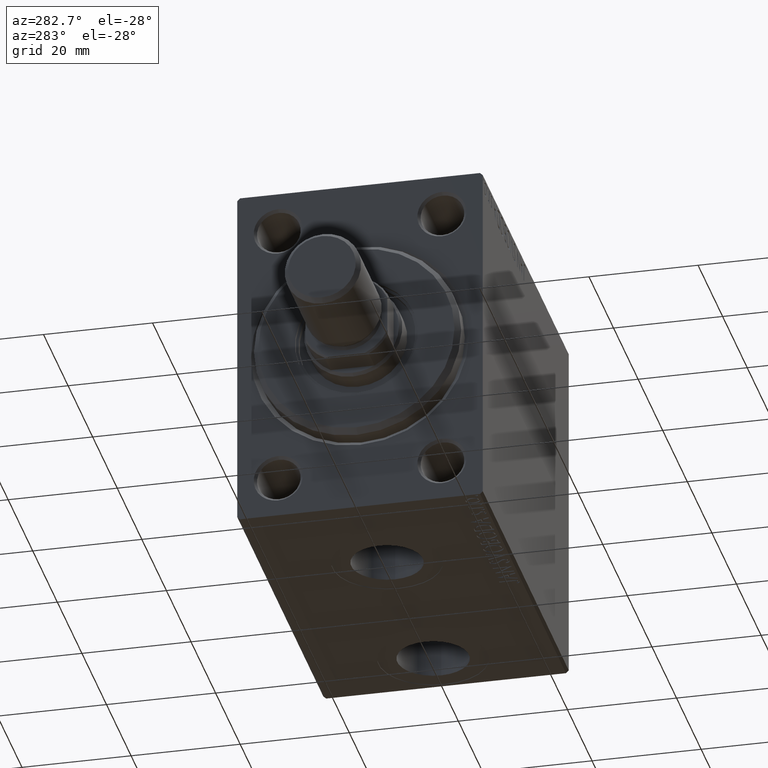
[diagram: clean part render]
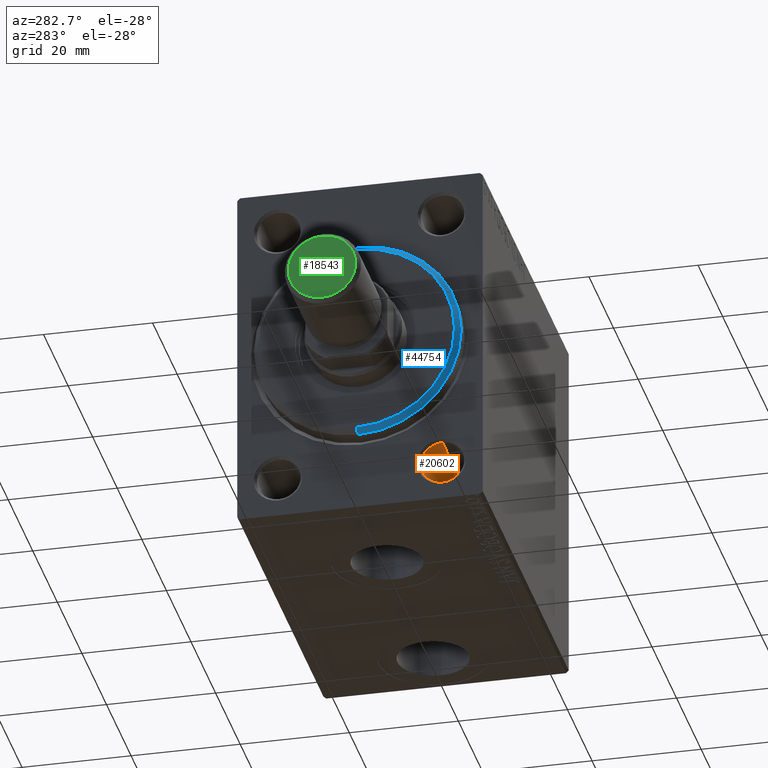
[diagram: same view with three faces highlighted in distinct colors, each labeled with its STEP entity id]
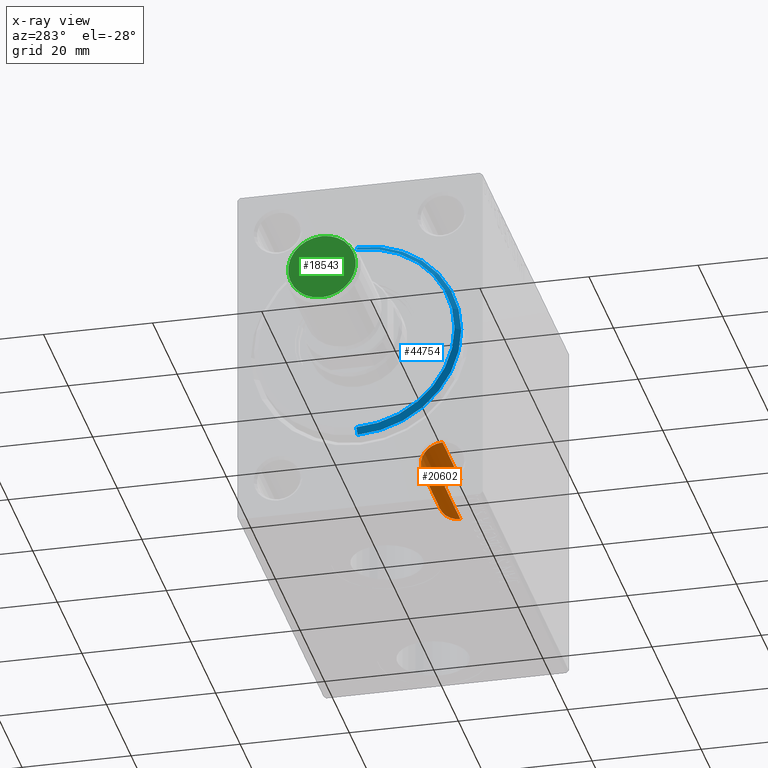
[diagram: x-ray of the same camera — body ghosted, the three highlighted faces saturated]
A machine part, auxiliary view with three faces highlighted in distinct colors.
The next image is the same camera in x-ray (body ghosted, the three faces saturated) — at least one of them is partly hidden behind the body in this view.
Their STEP definitions:

[orange] entity #20602 — the highlighted cylindrical surface (edge-blend (fillet) strip) has radius 4 mm, axis along (-1, -0, -0).
#1211 = CARTESIAN_POINT ( 'NONE',  ( 0.4999999999999917843, -15.00000000000000000, -21.00000000000000355 ) ) ;
#1624 = CYLINDRICAL_SURFACE ( 'NONE', #38999, 3.999999999999996447 ) ;
#2132 = CARTESIAN_POINT ( 'NONE',  ( 0.4999999999999917843, -15.00000000000000000, -28.99999999999999645 ) ) ;
#3599 = CIRCLE ( 'NONE', #28864, 3.999999999999996447 ) ;
#3856 = DIRECTION ( 'NONE',  ( 0.000000000000000000, 0.000000000000000000, 1.000000000000000000 ) ) ;
#4638 = DIRECTION ( 'NONE',  ( 0.000000000000000000, 0.000000000000000000, -1.000000000000000000 ) ) ;
#4907 = VERTEX_POINT ( 'NONE', #13430 ) ;
#5365 = DIRECTION ( 'NONE',  ( -1.000000000000000000, -0.000000000000000000, -0.000000000000000000 ) ) ;
#9045 = VERTEX_POINT ( 'NONE', #2132 ) ;
#10876 = VERTEX_POINT ( 'NONE', #1211 ) ;
#11294 = EDGE_CURVE ( 'NONE', #4907, #9045, #27442, .T. ) ;
#11878 = CARTESIAN_POINT ( 'NONE',  ( 0.4999999999999917843, -15.00000000000000000, -25.00000000000000000 ) ) ;
#12366 = DIRECTION ( 'NONE',  ( 0.000000000000000000, 0.000000000000000000, 1.000000000000000000 ) ) ;
#12523 = LINE ( 'NONE', #27149, #42098 ) ;
#13128 = VECTOR ( 'NONE', #42099, 1000.000000000000000 ) ;
#13430 = CARTESIAN_POINT ( 'NONE',  ( 15.00000000000000000, -15.00000000000000000, -28.99999999999999645 ) ) ;
#14145 = ORIENTED_EDGE ( 'NONE', *, *, #37233, .F. ) ;
#15587 = DIRECTION ( 'NONE',  ( -1.000000000000000000, 0.000000000000000000, 0.000000000000000000 ) ) ;
#17834 = CARTESIAN_POINT ( 'NONE',  ( 15.00000000000000000, -15.00000000000000000, -25.00000000000000000 ) ) ;
#19780 = CARTESIAN_POINT ( 'NONE',  ( 0.000000000000000000, -15.00000000000000000, -28.99999999999999645 ) ) ;
#20602 = ADVANCED_FACE ( 'NONE', ( #22821 ), #1624, .F. ) ;
#21533 = CIRCLE ( 'NONE', #25969, 3.999999999999996447 ) ;
#22539 = ORIENTED_EDGE ( 'NONE', *, *, #11294, .F. ) ;
#22821 = FACE_OUTER_BOUND ( 'NONE', #40990, .T. ) ;
#25969 = AXIS2_PLACEMENT_3D ( 'NONE', #17834, #39672, #3856 ) ;
#26916 = ORIENTED_EDGE ( 'NONE', *, *, #28666, .T. ) ;
#27149 = CARTESIAN_POINT ( 'NONE',  ( 0.000000000000000000, -15.00000000000000000, -21.00000000000000355 ) ) ;
#27442 = LINE ( 'NONE', #19780, #13128 ) ;
#28371 = VERTEX_POINT ( 'NONE', #30985 ) ;
#28666 = EDGE_CURVE ( 'NONE', #28371, #10876, #12523, .T. ) ;
#28864 = AXIS2_PLACEMENT_3D ( 'NONE', #11878, #15587, #4638 ) ;
#30012 = CARTESIAN_POINT ( 'NONE',  ( 0.000000000000000000, -15.00000000000000000, -25.00000000000000000 ) ) ;
#30985 = CARTESIAN_POINT ( 'NONE',  ( 15.00000000000000000, -15.00000000000000000, -21.00000000000000355 ) ) ;
#33472 = EDGE_CURVE ( 'NONE', #10876, #9045, #3599, .T. ) ;
#36279 = ORIENTED_EDGE ( 'NONE', *, *, #33472, .T. ) ;
#37233 = EDGE_CURVE ( 'NONE', #28371, #4907, #21533, .T. ) ;
#38999 = AXIS2_PLACEMENT_3D ( 'NONE', #30012, #5365, #12366 ) ;
#39672 = DIRECTION ( 'NONE',  ( -1.000000000000000000, -0.000000000000000000, -0.000000000000000000 ) ) ;
#40990 = EDGE_LOOP ( 'NONE', ( #22539, #14145, #26916, #36279 ) ) ;
#41106 = DIRECTION ( 'NONE',  ( -1.000000000000000000, -0.000000000000000000, -0.000000000000000000 ) ) ;
#42098 = VECTOR ( 'NONE', #41106, 1000.000000000000000 ) ;
#42099 = DIRECTION ( 'NONE',  ( -1.000000000000000000, -0.000000000000000000, -0.000000000000000000 ) ) ;

[blue] entity #44754 — the highlighted conical surface has half-angle 45 deg.
#1627 = CARTESIAN_POINT ( 'NONE',  ( 3.000000000000000000, 0.000000000000000000, 17.99999999999999645 ) ) ;
#2000 = CARTESIAN_POINT ( 'NONE',  ( 1.999999999999992228, 0.000000000000000000, 19.00000000000000000 ) ) ;
#3628 = FACE_OUTER_BOUND ( 'NONE', #10685, .T. ) ;
#3809 = DIRECTION ( 'NONE',  ( -1.000000000000000000, 0.000000000000000000, 0.000000000000000000 ) ) ;
#4164 = ORIENTED_EDGE ( 'NONE', *, *, #34925, .F. ) ;
#6670 = DIRECTION ( 'NONE',  ( 0.000000000000000000, 0.000000000000000000, 1.000000000000000000 ) ) ;
#7350 = DIRECTION ( 'NONE',  ( -1.000000000000000000, 0.000000000000000000, 0.000000000000000000 ) ) ;
#7535 = DIRECTION ( 'NONE',  ( 0.000000000000000000, 0.000000000000000000, -1.000000000000000000 ) ) ;
#10272 = EDGE_CURVE ( 'NONE', #44869, #31092, #27904, .T. ) ;
#10685 = EDGE_LOOP ( 'NONE', ( #33622, #34254, #4164, #13571 ) ) ;
#13203 = EDGE_CURVE ( 'NONE', #24899, #43748, #41185, .T. ) ;
#13571 = ORIENTED_EDGE ( 'NONE', *, *, #13203, .F. ) ;
#17901 = DIRECTION ( 'NONE',  ( -0.7071067811865487940, 8.659560562354918067E-17, -0.7071067811865463515 ) ) ;
#21998 = CARTESIAN_POINT ( 'NONE',  ( 3.000000000000000000, 2.265596578422603002E-15, -17.99999999999999645 ) ) ;
#22428 = EDGE_CURVE ( 'NONE', #44869, #24899, #42035, .T. ) ;
#22602 = CARTESIAN_POINT ( 'NONE',  ( 3.000000000000000000, 0.000000000000000000, 17.99999999999999645 ) ) ;
#23278 = DIRECTION ( 'NONE',  ( -0.7071067811865487940, 0.000000000000000000, 0.7071067811865463515 ) ) ;
#24193 = CARTESIAN_POINT ( 'NONE',  ( 3.000000000000000000, 2.204364238465235033E-15, -17.99999999999999645 ) ) ;
#24359 = CARTESIAN_POINT ( 'NONE',  ( 3.000000000000000000, 0.000000000000000000, 0.000000000000000000 ) ) ;
#24899 = VERTEX_POINT ( 'NONE', #22602 ) ;
#24957 = AXIS2_PLACEMENT_3D ( 'NONE', #43940, #44876, #26264 ) ;
#25911 = CIRCLE ( 'NONE', #26641, 19.00000000000000000 ) ;
#26264 = DIRECTION ( 'NONE',  ( 0.000000000000000000, 0.000000000000000000, -1.000000000000000000 ) ) ;
#26641 = AXIS2_PLACEMENT_3D ( 'NONE', #36364, #3809, #7535 ) ;
#27904 = LINE ( 'NONE', #24193, #33868 ) ;
#31092 = VERTEX_POINT ( 'NONE', #38226 ) ;
#33622 = ORIENTED_EDGE ( 'NONE', *, *, #22428, .F. ) ;
#33868 = VECTOR ( 'NONE', #17901, 1000.000000000000000 ) ;
#34254 = ORIENTED_EDGE ( 'NONE', *, *, #10272, .T. ) ;
#34925 = EDGE_CURVE ( 'NONE', #43748, #31092, #25911, .T. ) ;
#34969 = CONICAL_SURFACE ( 'NONE', #37970, 17.99999999999999645, 0.7853981633974466137 ) ;
#36176 = VECTOR ( 'NONE', #23278, 1000.000000000000000 ) ;
#36364 = CARTESIAN_POINT ( 'NONE',  ( 1.999999999999992228, 0.000000000000000000, 0.000000000000000000 ) ) ;
#37970 = AXIS2_PLACEMENT_3D ( 'NONE', #24359, #7350, #6670 ) ;
#38226 = CARTESIAN_POINT ( 'NONE',  ( 1.999999999999992228, 2.326828918379970970E-15, -19.00000000000000000 ) ) ;
#41185 = LINE ( 'NONE', #1627, #36176 ) ;
#42035 = CIRCLE ( 'NONE', #24957, 17.99999999999999645 ) ;
#43748 = VERTEX_POINT ( 'NONE', #2000 ) ;
#43940 = CARTESIAN_POINT ( 'NONE',  ( 3.000000000000000000, 0.000000000000000000, 0.000000000000000000 ) ) ;
#44754 = ADVANCED_FACE ( 'NONE', ( #3628 ), #34969, .T. ) ;
#44869 = VERTEX_POINT ( 'NONE', #21998 ) ;
#44876 = DIRECTION ( 'NONE',  ( 1.000000000000000000, -0.000000000000000000, 0.000000000000000000 ) ) ;

[green] entity #18543 — the highlighted planar face has unit normal (1, 0, 0).
#4362 = CARTESIAN_POINT ( 'NONE',  ( 0.000000000000000000, 0.000000000000000000, 0.000000000000000000 ) ) ;
#6130 = PLANE ( 'NONE',  #38177 ) ;
#6300 = AXIS2_PLACEMENT_3D ( 'NONE', #25734, #28308, #29207 ) ;
#8011 = AXIS2_PLACEMENT_3D ( 'NONE', #4362, #35994, #15302 ) ;
#9152 = VERTEX_POINT ( 'NONE', #38194 ) ;
#9632 = DIRECTION ( 'NONE',  ( 0.000000000000000000, 0.000000000000000000, 1.000000000000000000 ) ) ;
#10324 = DIRECTION ( 'NONE',  ( 1.000000000000000000, 0.000000000000000000, -0.000000000000000000 ) ) ;
#15302 = DIRECTION ( 'NONE',  ( 1.000000000000000000, 0.000000000000000000, 0.000000000000000000 ) ) ;
#18543 = ADVANCED_FACE ( 'NONE', ( #44982 ), #6130, .F. ) ;
#19806 = EDGE_CURVE ( 'NONE', #9152, #25073, #24895, .T. ) ;
#24895 = CIRCLE ( 'NONE', #6300, 6.199999999999999289 ) ;
#25073 = VERTEX_POINT ( 'NONE', #45399 ) ;
#25734 = CARTESIAN_POINT ( 'NONE',  ( 0.000000000000000000, 0.000000000000000000, 0.000000000000000000 ) ) ;
#28308 = DIRECTION ( 'NONE',  ( -0.000000000000000000, -0.000000000000000000, -1.000000000000000000 ) ) ;
#29207 = DIRECTION ( 'NONE',  ( 1.000000000000000000, 0.000000000000000000, 0.000000000000000000 ) ) ;
#31133 = ORIENTED_EDGE ( 'NONE', *, *, #19806, .T. ) ;
#32703 = EDGE_CURVE ( 'NONE', #25073, #9152, #37001, .T. ) ;
#35994 = DIRECTION ( 'NONE',  ( -0.000000000000000000, -0.000000000000000000, -1.000000000000000000 ) ) ;
#37001 = CIRCLE ( 'NONE', #8011, 6.199999999999999289 ) ;
#38177 = AXIS2_PLACEMENT_3D ( 'NONE', #41492, #9632, #10324 ) ;
#38194 = CARTESIAN_POINT ( 'NONE',  ( -6.199999999999999289, 8.082668874372528061E-16, 0.000000000000000000 ) ) ;
#41492 = CARTESIAN_POINT ( 'NONE',  ( 0.000000000000000000, 0.000000000000000000, 0.000000000000000000 ) ) ;
#42505 = EDGE_LOOP ( 'NONE', ( #44636, #31133 ) ) ;
#44636 = ORIENTED_EDGE ( 'NONE', *, *, #32703, .T. ) ;
#44982 = FACE_OUTER_BOUND ( 'NONE', #42505, .T. ) ;
#45399 = CARTESIAN_POINT ( 'NONE',  ( 6.199999999999999289, 0.000000000000000000, 0.000000000000000000 ) ) ;